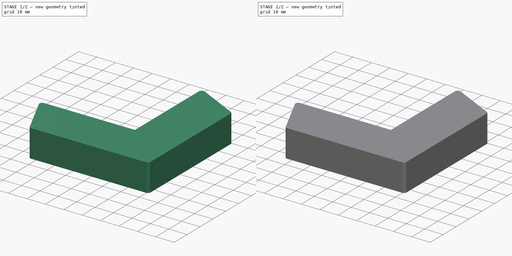
[diagram: build sequence overview — one tinted view per stage of 2, left to right]
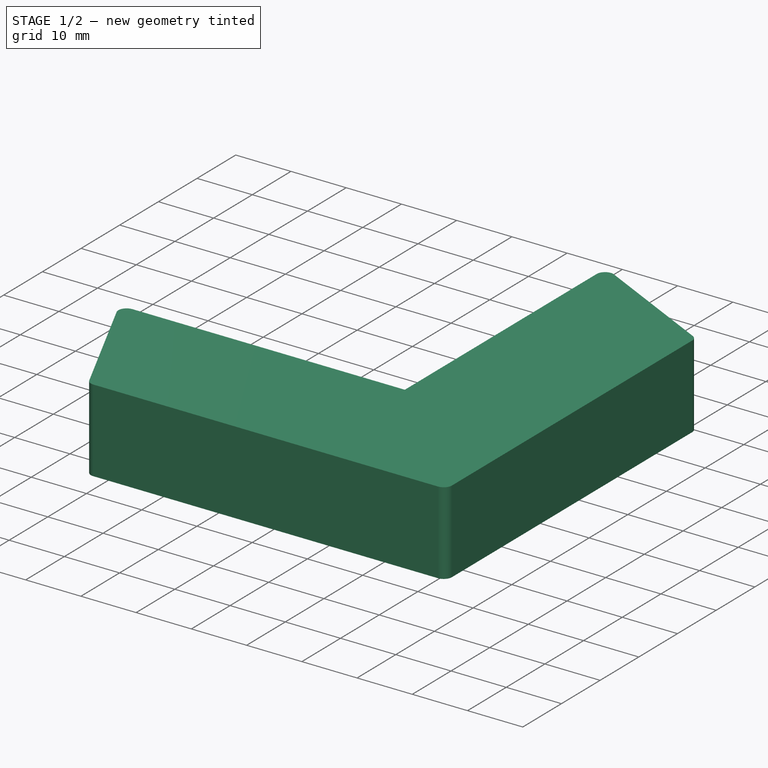
[diagram: stage 1 of 2 — iso view after this stage's code; geometry added in this stage tinted green]
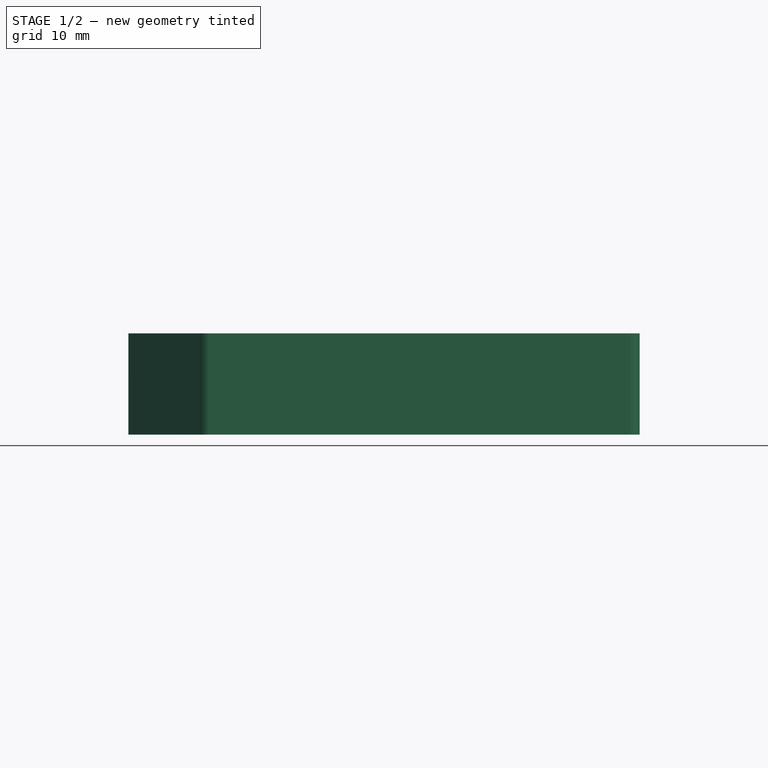
[diagram: stage 1 of 2 — front view after this stage's code; geometry added in this stage tinted green]
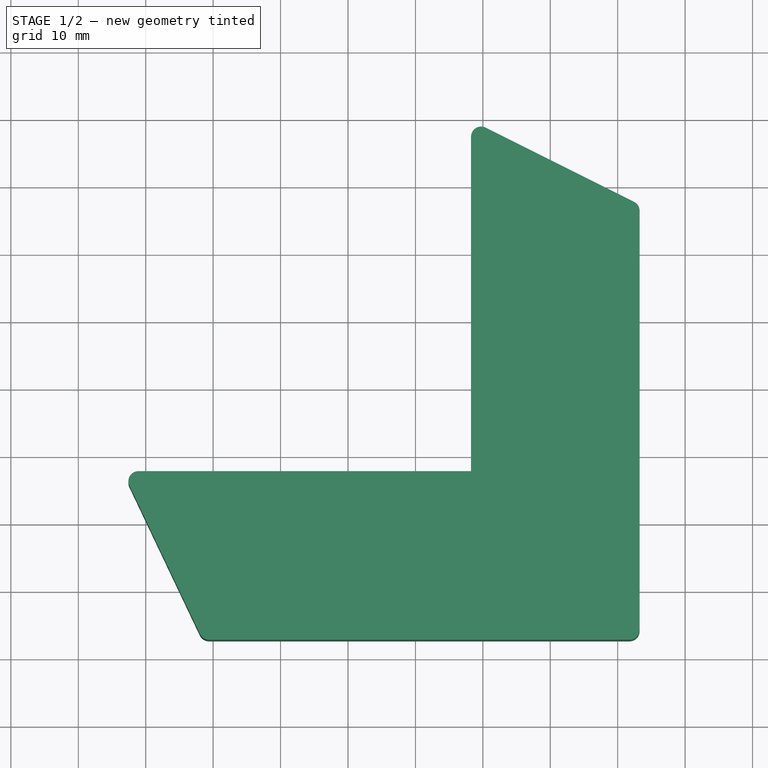
[diagram: stage 1 of 2 — top view after this stage's code; geometry added in this stage tinted green]
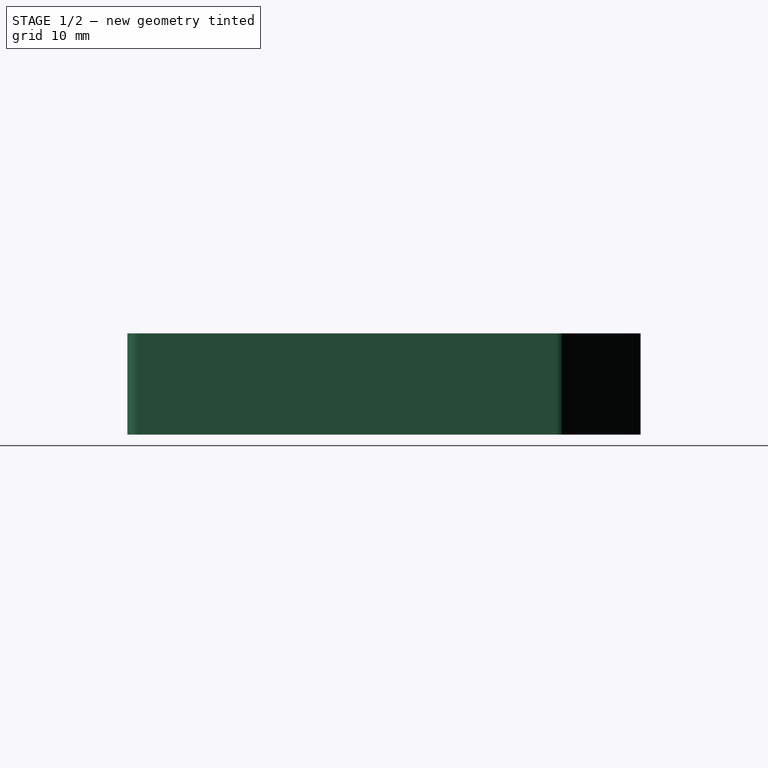
[diagram: stage 1 of 2 — right view after this stage's code; geometry added in this stage tinted green]
FCSTD DOCUMENT  (FreeCAD 0.22R35494 (Git))
Label: camper part
License: All rights reserved
LicenseURL: https://en.wikipedia.org/wiki/All_rights_reserved
objects: Sketcher::SketchObject×3, PartDesign::Pad×2, PartDesign::Plane×1, PartDesign::Pocket×1, PartDesign::Body×1
note: 11 computed .brp shape members not serialized (recipe doc carries the construction recipe); baked Part::Feature solids carry a one-line shape summary decoded from their .brp

FEATURE [Sketcher::SketchObject] Sketch
  FullyConstrained = false
  MapMode = 5
  Support = -> [XY_Plane]
  sketch-geometry (11):
    g0: LineSegment StartX=-50.617 StartY=-37.3071 StartZ=0 EndX=11.75 EndY=-37.3071 EndZ=0
    g1: LineSegment StartX=13.25 StartY=-35.8071 StartZ=0 EndX=13.25 EndY=26.2979 EndZ=0
    g2: LineSegment StartX=12.4213 StartY=27.6393 StartZ=0 EndX=-9.57873 EndY=38.6485 EndZ=0
    g3: LineSegment StartX=-11.75 StartY=37.3071 StartZ=0 EndX=-11.75 EndY=-12.3071 EndZ=0
    g4: LineSegment StartX=-11.75 StartY=-12.3071 StartZ=0 EndX=-61.0735 EndY=-12.3071 EndZ=0
    g5: LineSegment StartX=-62.4282 StartY=-14.451 StartZ=0 EndX=-51.9718 EndY=-36.451 EndZ=0
    g6: ArcOfCircle CenterX=11.75 CenterY=26.2979 CenterZ=0 NormalX=0 NormalY=0 NormalZ=1 AngleXU=0 Radius=1.5 StartAngle=0 EndAngle=1.10681
    g7: ArcOfCircle CenterX=11.75 CenterY=-35.8071 CenterZ=0 NormalX=0 NormalY=0 NormalZ=1 AngleXU=0 Radius=1.5 StartAngle=4.71239 EndAngle=6.28319
    g8: ArcOfCircle CenterX=-50.617 CenterY=-35.8071 CenterZ=0 NormalX=0 NormalY=0 NormalZ=1 AngleXU=0 Radius=1.5 StartAngle=3.58528 EndAngle=4.71239
    g9: ArcOfCircle CenterX=-61.0735 CenterY=-13.8071 CenterZ=0 NormalX=0 NormalY=0 NormalZ=1 AngleXU=0 Radius=1.5 StartAngle=1.5708 EndAngle=3.58528
    g10: ArcOfCircle CenterX=-10.25 CenterY=37.3071 CenterZ=0 NormalX=0 NormalY=0 NormalZ=1 AngleXU=0 Radius=1.5 StartAngle=1.10681 EndAngle=3.14159
  constraints (23):
    c: Horizontal(g0)
    c: Vertical(g1)
    c: Vertical(g3)
    c: Coincident(g3,g4)
    c: Horizontal(g4)
    c: Tangent(g2,g6) = -1.5708
    c: Tangent(g1,g6) = -1.5708
    c: Tangent(g1,g7) = -1.5708
    c: Tangent(g0,g7) = -1.5708
    c: Tangent(g5,g8) = -1.5708
    c: Tangent(g0,g8) = -1.5708
    c: Tangent(g4,g9) = -1.5708
    c: Tangent(g5,g9) = -1.5708
    c: Tangent(g2,g10) = -1.5708
    c: Tangent(g3,g10) = -1.5708
    c: Radius(g7) = 1.5
    c: Equal(g10,g6)
    c: Equal(g6,g8)
    c: Equal(g8,g9)
    c: Equal(g9,g7)
    c: DistanceX(g3,g1) = 25
    c: DistanceY(g0,g3) = 25
    c: Symmetric(g3,g0,g-1)
FEATURE [PartDesign::Pad] Pad
  Direction = (0,0,1)
  Length = 15
  Length2 = 10
  Profile = -> Sketch
  ReferenceAxis = -> Sketch [N_Axis]
  Type = 0
FEATURE [PartDesign::Plane] DatumPlane
  Length = 103.902
  MapMode = 5
  Placement = pos=(0,0,15) rot=(0,0,1;0rad)
  ResizeMode = 0
  Support = -> [Pad]
  Width = 92.4427
FEATURE [Sketcher::SketchObject] Sketch001
  AttachmentOffset = pos=(0,0,-3.5) rot=(0,0,1;0rad)
  ExternalGeometry = -> [Pad]
  FullyConstrained = true
  MapMode = 5
  Placement = pos=(0,0,11.5) rot=(0,0,1;0rad)
  Support = -> [DatumPlane]
  sketch-geometry (6):
    g0: LineSegment StartX=-8.25 StartY=-15.8071 StartZ=0 EndX=-57.9282 EndY=-15.8071 EndZ=0
    g1: LineSegment StartX=-57.9282 StartY=-15.8071 StartZ=0 EndX=-49.9718 EndY=-33.8071 EndZ=0
    g2: LineSegment StartX=-49.9718 StartY=-33.8071 StartZ=0 EndX=9.75 EndY=-33.8071 EndZ=0
    g3: LineSegment StartX=9.75 StartY=-33.8071 StartZ=0 EndX=9.75 EndY=25.6393 EndZ=0
    g4: LineSegment StartX=-8.25 StartY=-15.8071 StartZ=0 EndX=-8.25 EndY=34.1485 EndZ=0
    g5: LineSegment StartX=-8.25 StartY=34.1485 StartZ=0 EndX=9.75 EndY=25.6393 EndZ=0
  constraints (18):
    c: Horizontal(g0)
    c: Coincident(g0,g1)
    c: Coincident(g1,g2)
    c: Horizontal(g2)
    c: Coincident(g2,g3)
    c: Vertical(g3)
    c: Coincident(g0,g4)
    c: Vertical(g4)
    c: Coincident(g4,g5)
    c: Coincident(g5,g3)
    c: DistanceX(g4,g3) = 18
    c: DistanceY(g1,g0) = 18
    c: DistanceX(g3,g-3) = 3.5
    c: DistanceY(g-4,g2) = 3.5
    c: DistanceY(g4,g-6) = 4.5
    c: DistanceX(g-5,g0) = 4.5
    c: DistanceX(g-5,g1) = 2
    c: DistanceY(g3,g-6) = 2
FEATURE [PartDesign::Pocket] Pocket
  BaseFeature = -> Pad
  Direction = (0,0,-1)
  Length = 8
  Length2 = 5
  Profile = -> Sketch001
  ReferenceAxis = -> Sketch001 [N_Axis]
  Type = 0
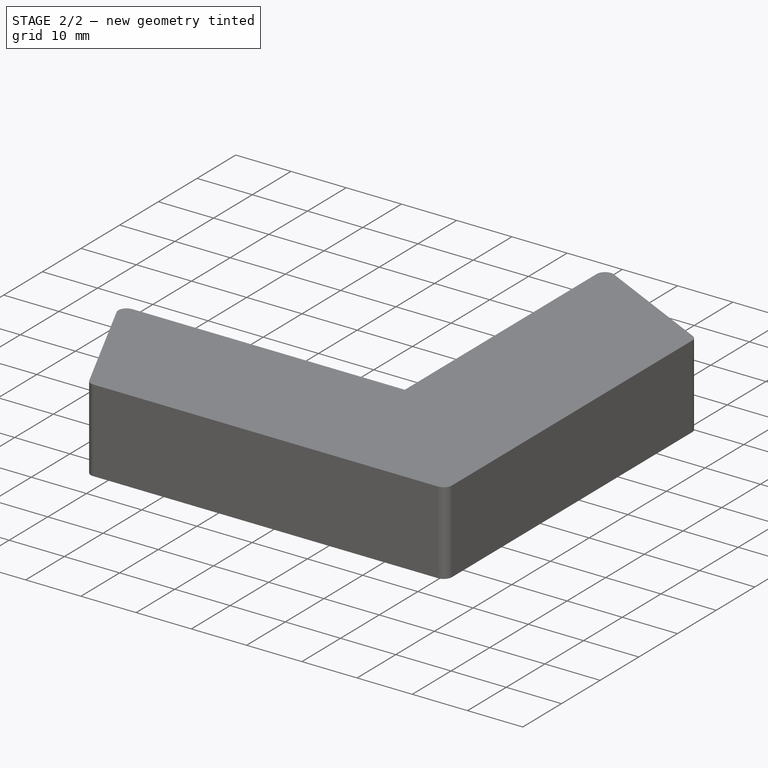
[diagram: stage 2 of 2 — iso view after this stage's code; geometry added in this stage tinted green]
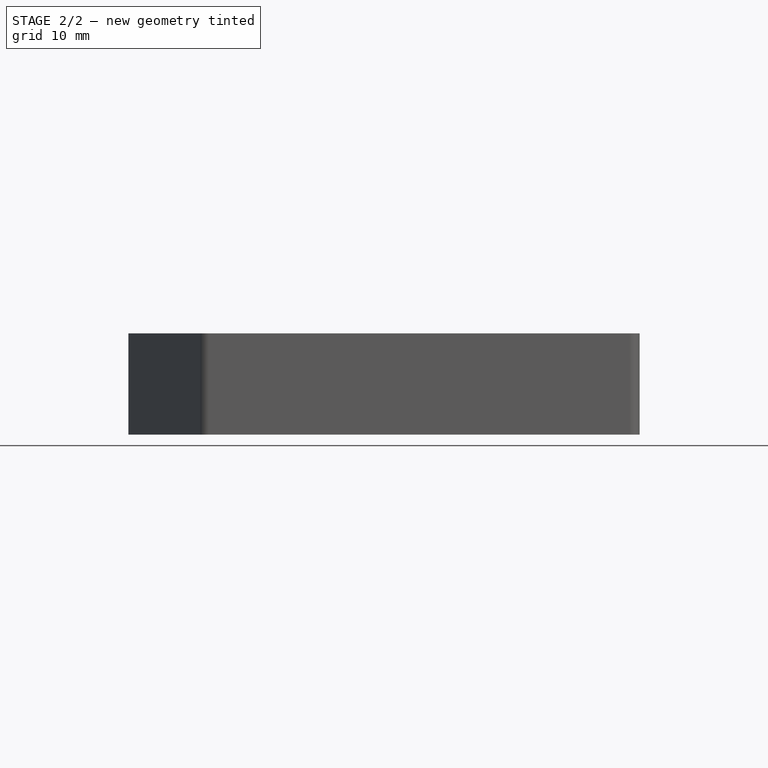
[diagram: stage 2 of 2 — front view after this stage's code; geometry added in this stage tinted green]
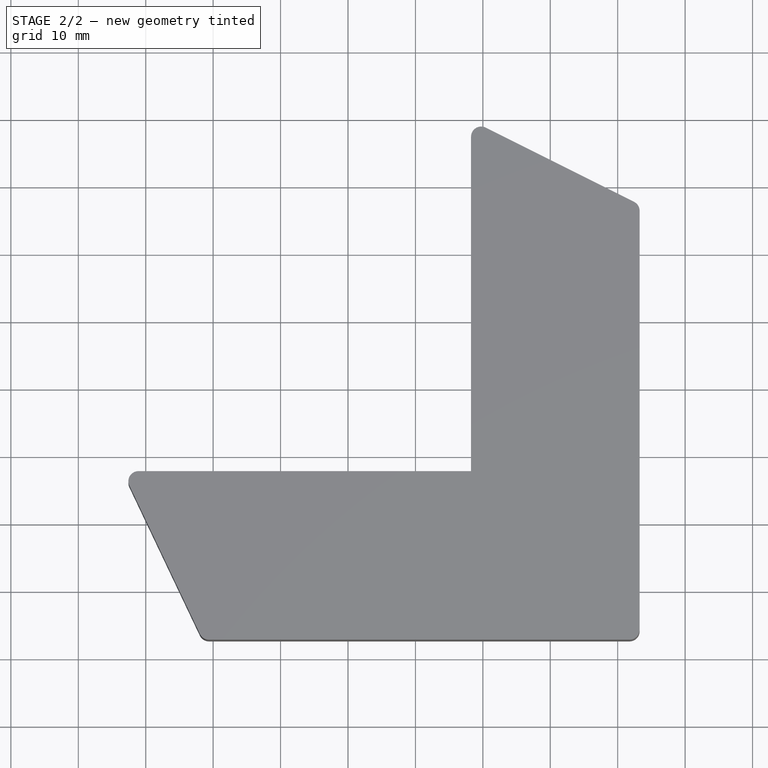
[diagram: stage 2 of 2 — top view after this stage's code; geometry added in this stage tinted green]
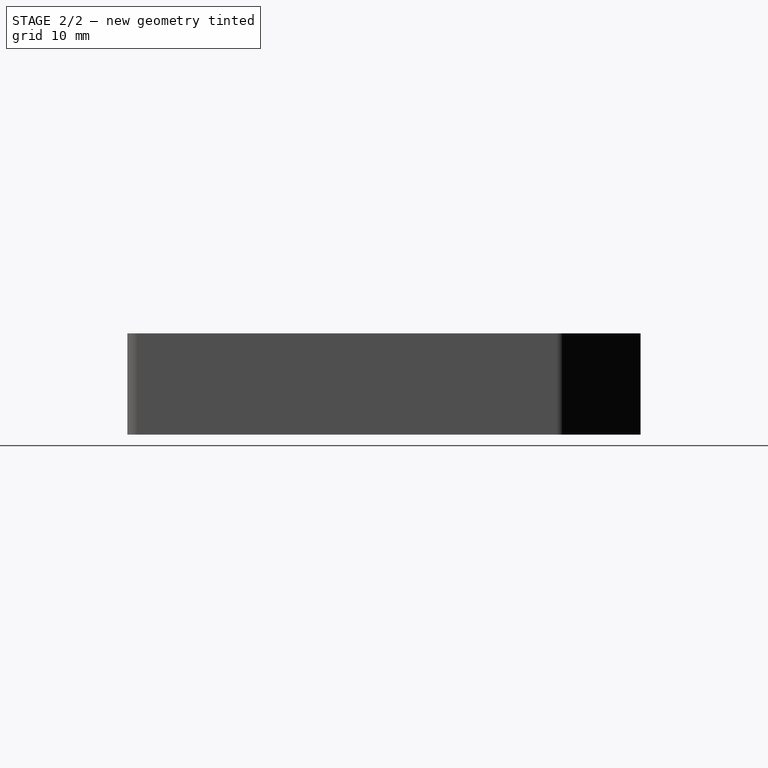
[diagram: stage 2 of 2 — right view after this stage's code; geometry added in this stage tinted green]
FEATURE [Sketcher::SketchObject] Sketch002
  ExternalGeometry = -> [Pocket]
  FullyConstrained = true
  MapMode = 5
  Placement = pos=(0,0,15) rot=(0,0,1;0rad)
  Support = -> [Pocket]
  sketch-geometry (4):
    g0: LineSegment StartX=-33.7232 StartY=-37.3071 StartZ=0 EndX=-28.7232 EndY=-37.3071 EndZ=0
    g1: LineSegment StartX=-28.7232 StartY=-37.3071 StartZ=0 EndX=13.25 EndY=4.69287 EndZ=0
    g2: LineSegment StartX=13.25 StartY=4.69287 StartZ=0 EndX=13.25 EndY=9.69287 EndZ=0
    g3: LineSegment StartX=13.25 StartY=9.69287 StartZ=0 EndX=-33.7232 EndY=-37.3071 EndZ=0
  constraints (12):
    c: PointOnObject(g0,g-4)
    c: PointOnObject(g0,g-4)
    c: Coincident(g0,g1)
    c: PointOnObject(g1,g-3)
    c: Coincident(g1,g2)
    c: PointOnObject(g2,g-3)
    c: Coincident(g2,g3)
    c: Coincident(g3,g0)
    c: Equal(g2,g0)
    c: DistanceX(g0,g0) = 5
    c: DistanceY(g-4,g1) = 42
    c: Distance(g0,g-3) = 42
FEATURE [PartDesign::Pad] Pad001
  BaseFeature = -> Pocket
  Direction = (0,0,1)
  Length = 15
  Length2 = 10
  Profile = -> Sketch002
  ReferenceAxis = -> Sketch002 [N_Axis]
  Reversed = true
  Type = 0
FEATURE [PartDesign::Body] Body
  Group = -> [Sketch,Pad,DatumPlane,Sketch001,Pocket,Sketch002,Pad001]
  Origin = -> Origin
  Tip = -> Pad001
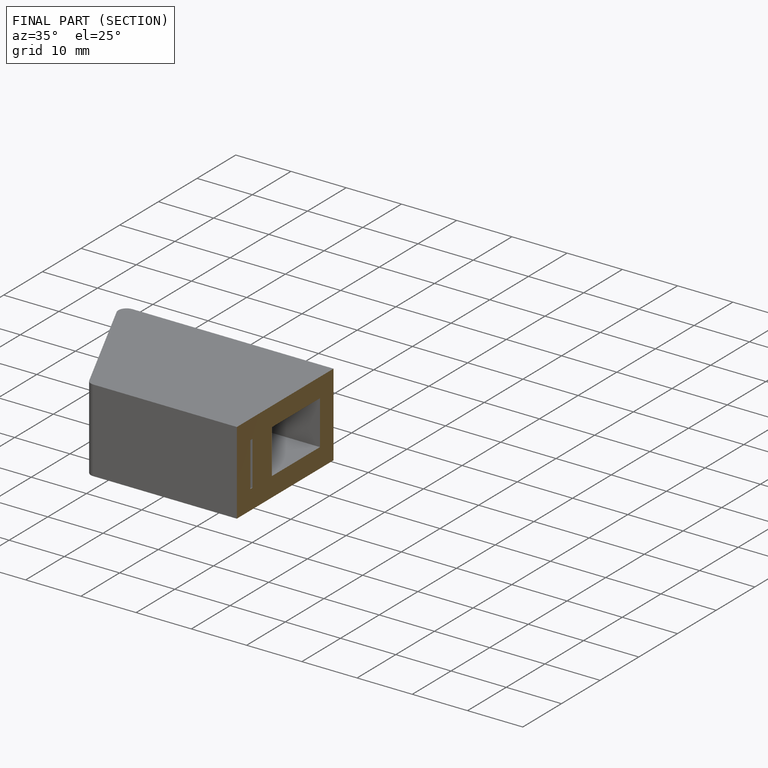
[diagram: finished part — half-section view (interior)]
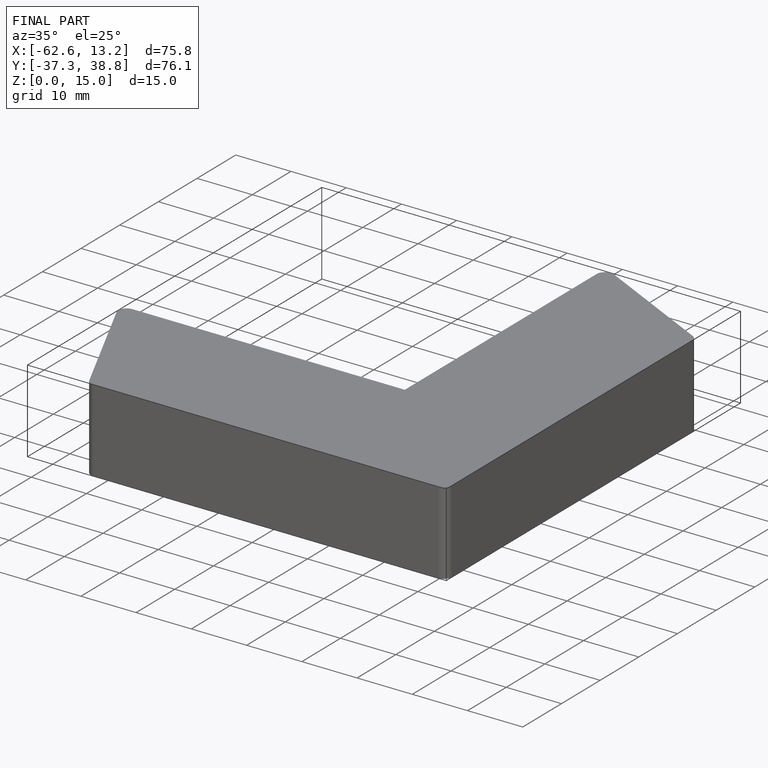
[diagram: finished part — iso view with bounding-box wireframe]
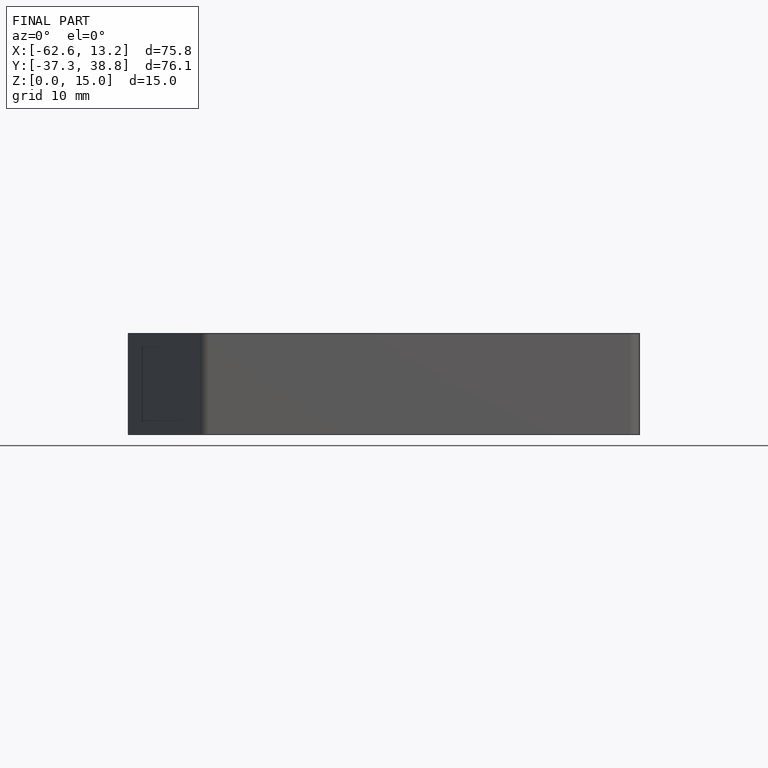
[diagram: finished part — front view with bounding-box wireframe]
